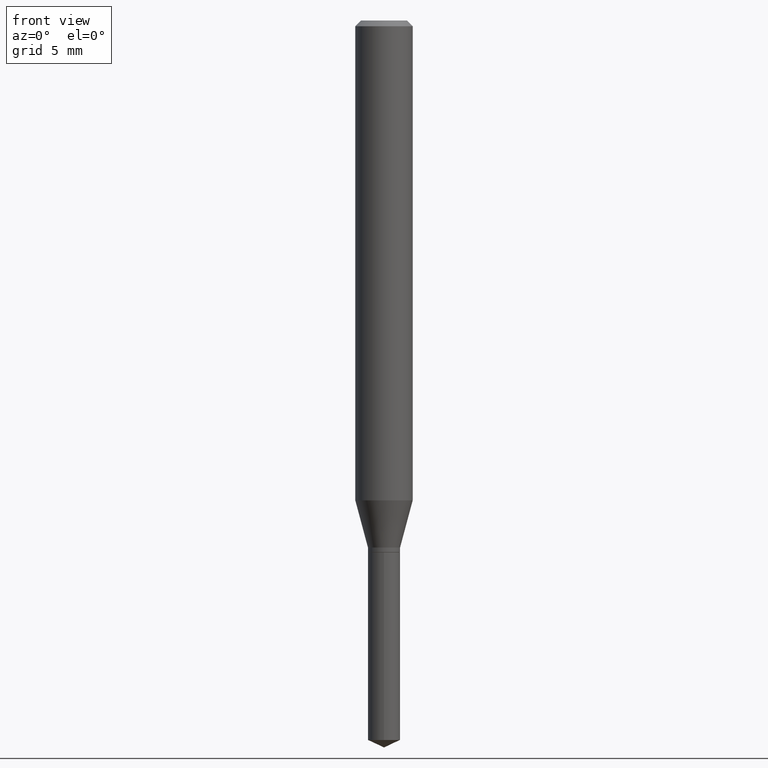
[diagram: clean part render]
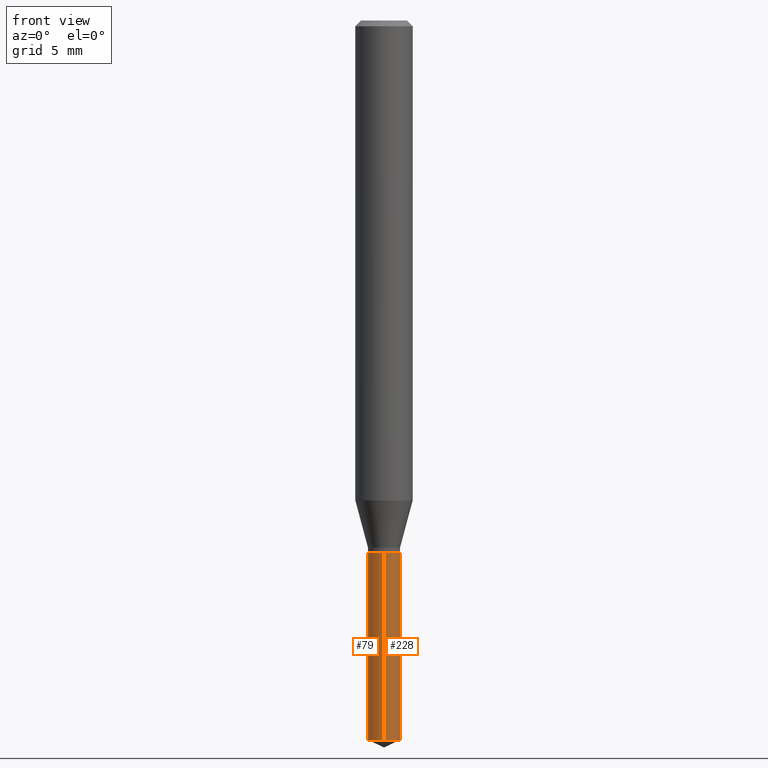
[diagram: same view with one multi-face feature highlighted, each face labeled with its STEP entity id]
A machine part, front view. The highlighted faces form ONE feature: a constant-radius fillet chain: 2 tangent blend faces with common blend radius 0.8395 mm. The faces share edges in the B-rep.
Their STEP definitions:
[1] entity #228 (Cylinder):
#3 = AXIS2_PLACEMENT_3D ( 'NONE', #215, #369, #325 ) ;
#37 = VERTEX_POINT ( 'NONE', #235 ) ;
#41 = EDGE_CURVE ( 'NONE', #37, #56, #357, .T. ) ;
#54 = FACE_OUTER_BOUND ( 'NONE', #78, .T. ) ;
#56 = VERTEX_POINT ( 'NONE', #316 ) ;
#78 = EDGE_LOOP ( 'NONE', ( #219, #339, #419, #371 ) ) ;
#123 = VERTEX_POINT ( 'NONE', #238 ) ;
#141 = DIRECTION ( 'NONE',  ( -6.982962677686265922E-15, -1.000000000000000000, 0.000000000000000000 ) ) ;
#143 = DIRECTION ( 'NONE',  ( -2.445470214571802396E-29, 3.491479321953280158E-15, 1.000000000000000000 ) ) ;
#184 = CARTESIAN_POINT ( 'NONE',  ( -2.307869164975043322E-16, -0.03305000000000381938, -1.094499999999999806 ) ) ;
#188 = VECTOR ( 'NONE', #192, 39.37007874015748143 ) ;
#192 = DIRECTION ( 'NONE',  ( -2.445470214571802396E-29, 3.491479321953280158E-15, 1.000000000000000000 ) ) ;
#198 = CIRCLE ( 'NONE', #214, 0.03305000000000000299 ) ;
#206 = EDGE_CURVE ( 'NONE', #123, #56, #392, .T. ) ;
#211 = DIRECTION ( 'NONE',  ( -6.982962677686265922E-15, -1.000000000000000000, 4.132901654560155873E-15 ) ) ;
#214 = AXIS2_PLACEMENT_3D ( 'NONE', #330, #370, #141 ) ;
#215 = CARTESIAN_POINT ( 'NONE',  ( 2.676565608369631794E-29, -3.821426325363822773E-15, -1.094499999999999806 ) ) ;
#219 = ORIENTED_EDGE ( 'NONE', *, *, #342, .T. ) ;
#221 = VECTOR ( 'NONE', #143, 39.37007874015748143 ) ;
#228 = ADVANCED_FACE ( 'NONE', ( #54 ), #328, .T. ) ;
#235 = CARTESIAN_POINT ( 'NONE',  ( 2.348343741687493216E-16, 0.03304999999999484045, -1.480688531897977445 ) ) ;
#238 = CARTESIAN_POINT ( 'NONE',  ( -2.307869164975043322E-16, -0.03305000000000381938, -1.094499999999999806 ) ) ;
#247 = CARTESIAN_POINT ( 'NONE',  ( -2.307869164974949644E-16, -0.03305000000000517940, -1.480688531897977445 ) ) ;
#258 = AXIS2_PLACEMENT_3D ( 'NONE', #284, #363, #211 ) ;
#264 = VERTEX_POINT ( 'NONE', #247 ) ;
#280 = EDGE_CURVE ( 'NONE', #264, #123, #367, .T. ) ;
#284 = CARTESIAN_POINT ( 'NONE',  ( 2.676565608369631794E-29, -3.821426325363822773E-15, -1.094499999999999806 ) ) ;
#316 = CARTESIAN_POINT ( 'NONE',  ( 2.348343741687493709E-16, 0.03304999999999617966, -1.094500000000000028 ) ) ;
#325 = DIRECTION ( 'NONE',  ( -6.982962677686265922E-15, -1.000000000000000000, 4.132901654560155873E-15 ) ) ;
#328 = CYLINDRICAL_SURFACE ( 'NONE', #258, 0.03305000000000000299 ) ;
#330 = CARTESIAN_POINT ( 'NONE',  ( 3.620978160335348637E-29, -5.169795598861106242E-15, -1.480688531897977445 ) ) ;
#339 = ORIENTED_EDGE ( 'NONE', *, *, #41, .T. ) ;
#342 = EDGE_CURVE ( 'NONE', #264, #37, #198, .T. ) ;
#357 = LINE ( 'NONE', #460, #188 ) ;
#363 = DIRECTION ( 'NONE',  ( -2.445470214571802116E-29, 3.491479321953280158E-15, 1.000000000000000000 ) ) ;
#367 = LINE ( 'NONE', #184, #221 ) ;
#369 = DIRECTION ( 'NONE',  ( -2.445470214571802116E-29, 3.491479321953280158E-15, 1.000000000000000000 ) ) ;
#370 = DIRECTION ( 'NONE',  ( -2.445470214571802116E-29, 3.491479321953280158E-15, 1.000000000000000000 ) ) ;
#371 = ORIENTED_EDGE ( 'NONE', *, *, #280, .F. ) ;
#392 = CIRCLE ( 'NONE', #3, 0.03305000000000000299 ) ;
#419 = ORIENTED_EDGE ( 'NONE', *, *, #206, .F. ) ;
#460 = CARTESIAN_POINT ( 'NONE',  ( 2.348343741687398553E-16, 0.03304999999999617966, -1.094500000000000028 ) ) ;
[2] entity #79 (Cylinder):
#1 = CYLINDRICAL_SURFACE ( 'NONE', #43, 0.03305000000000000299 ) ;
#2 = ORIENTED_EDGE ( 'NONE', *, *, #405, .F. ) ;
#6 = DIRECTION ( 'NONE',  ( -6.982962677686265922E-15, -1.000000000000000000, 4.132901654560155873E-15 ) ) ;
#37 = VERTEX_POINT ( 'NONE', #235 ) ;
#41 = EDGE_CURVE ( 'NONE', #37, #56, #357, .T. ) ;
#42 = CARTESIAN_POINT ( 'NONE',  ( 2.676565608369631794E-29, -3.821426325363822773E-15, -1.094499999999999806 ) ) ;
#43 = AXIS2_PLACEMENT_3D ( 'NONE', #42, #314, #6 ) ;
#56 = VERTEX_POINT ( 'NONE', #316 ) ;
#79 = ADVANCED_FACE ( 'NONE', ( #86 ), #1, .T. ) ;
#86 = FACE_OUTER_BOUND ( 'NONE', #333, .T. ) ;
#105 = CARTESIAN_POINT ( 'NONE',  ( 3.620978160335348637E-29, -5.169795598861106242E-15, -1.480688531897977445 ) ) ;
#110 = ORIENTED_EDGE ( 'NONE', *, *, #41, .F. ) ;
#123 = VERTEX_POINT ( 'NONE', #238 ) ;
#143 = DIRECTION ( 'NONE',  ( -2.445470214571802396E-29, 3.491479321953280158E-15, 1.000000000000000000 ) ) ;
#150 = ORIENTED_EDGE ( 'NONE', *, *, #450, .T. ) ;
#179 = DIRECTION ( 'NONE',  ( -6.982962677686265922E-15, -1.000000000000000000, 4.132901654560155873E-15 ) ) ;
#184 = CARTESIAN_POINT ( 'NONE',  ( -2.307869164975043322E-16, -0.03305000000000381938, -1.094499999999999806 ) ) ;
#188 = VECTOR ( 'NONE', #192, 39.37007874015748143 ) ;
#192 = DIRECTION ( 'NONE',  ( -2.445470214571802396E-29, 3.491479321953280158E-15, 1.000000000000000000 ) ) ;
#221 = VECTOR ( 'NONE', #143, 39.37007874015748143 ) ;
#226 = DIRECTION ( 'NONE',  ( -2.445470214571802116E-29, 3.491479321953280158E-15, 1.000000000000000000 ) ) ;
#235 = CARTESIAN_POINT ( 'NONE',  ( 2.348343741687493216E-16, 0.03304999999999484045, -1.480688531897977445 ) ) ;
#238 = CARTESIAN_POINT ( 'NONE',  ( -2.307869164975043322E-16, -0.03305000000000381938, -1.094499999999999806 ) ) ;
#247 = CARTESIAN_POINT ( 'NONE',  ( -2.307869164974949644E-16, -0.03305000000000517940, -1.480688531897977445 ) ) ;
#253 = ORIENTED_EDGE ( 'NONE', *, *, #280, .T. ) ;
#254 = DIRECTION ( 'NONE',  ( -2.445470214571802116E-29, 3.491479321953280158E-15, 1.000000000000000000 ) ) ;
#264 = VERTEX_POINT ( 'NONE', #247 ) ;
#280 = EDGE_CURVE ( 'NONE', #264, #123, #367, .T. ) ;
#286 = AXIS2_PLACEMENT_3D ( 'NONE', #105, #226, #416 ) ;
#314 = DIRECTION ( 'NONE',  ( -2.445470214571802116E-29, 3.491479321953280158E-15, 1.000000000000000000 ) ) ;
#316 = CARTESIAN_POINT ( 'NONE',  ( 2.348343741687493709E-16, 0.03304999999999617966, -1.094500000000000028 ) ) ;
#333 = EDGE_LOOP ( 'NONE', ( #110, #150, #253, #2 ) ) ;
#357 = LINE ( 'NONE', #460, #188 ) ;
#367 = LINE ( 'NONE', #184, #221 ) ;
#375 = AXIS2_PLACEMENT_3D ( 'NONE', #441, #254, #179 ) ;
#405 = EDGE_CURVE ( 'NONE', #56, #123, #414, .T. ) ;
#414 = CIRCLE ( 'NONE', #375, 0.03305000000000000299 ) ;
#416 = DIRECTION ( 'NONE',  ( -6.982962677686265922E-15, -1.000000000000000000, 0.000000000000000000 ) ) ;
#441 = CARTESIAN_POINT ( 'NONE',  ( 2.676565608369631794E-29, -3.821426325363822773E-15, -1.094499999999999806 ) ) ;
#450 = EDGE_CURVE ( 'NONE', #37, #264, #473, .T. ) ;
#460 = CARTESIAN_POINT ( 'NONE',  ( 2.348343741687398553E-16, 0.03304999999999617966, -1.094500000000000028 ) ) ;
#473 = CIRCLE ( 'NONE', #286, 0.03305000000000000299 ) ;